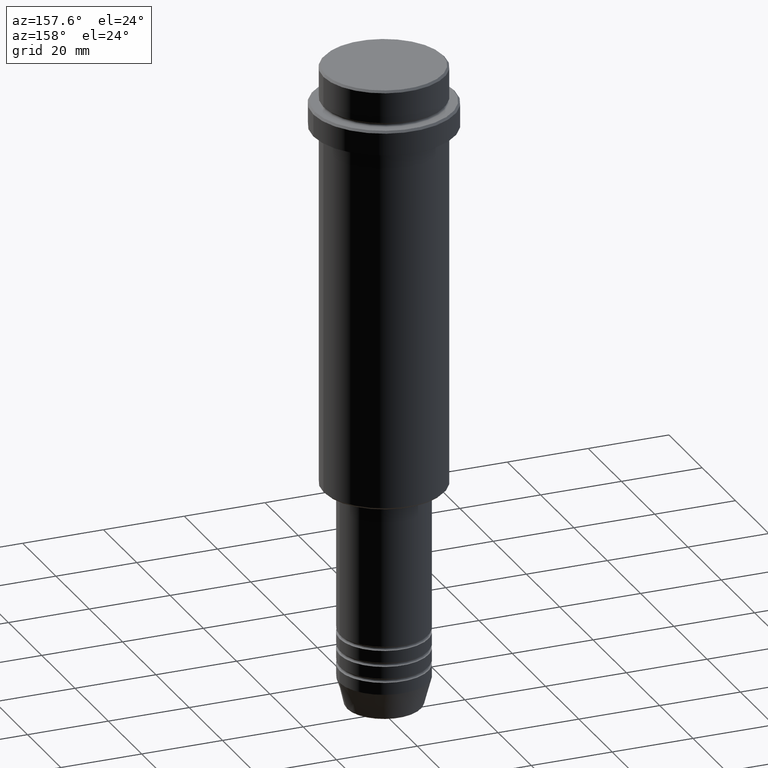
[diagram: clean part render]
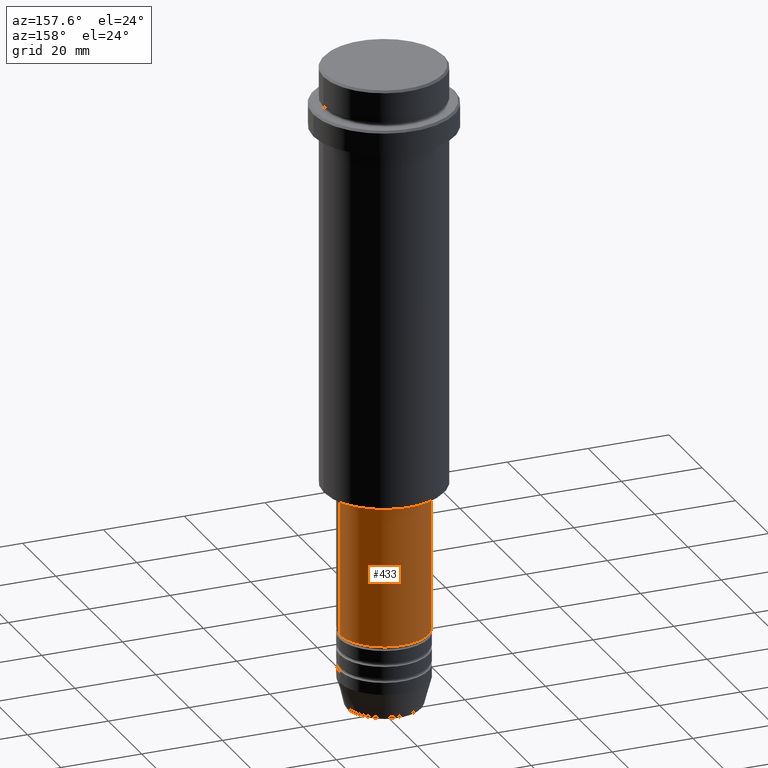
[diagram: same view with one face highlighted and labeled with its STEP entity id]
A machine part, auxiliary view. The second image highlights one B-rep face of the part: STEP entity #433.
In plain terms, the highlighted cylindrical surface (partial cylindrical patch) has radius 11 mm, axis along (-0, -0, 1).
Its self-contained STEP definition (entity closure, byte-faithful):
#9 = VECTOR ( 'NONE', #1145, 1000.000000000000000 ) ;
#138 = DIRECTION ( 'NONE',  ( 1.000000000000000000, 0.000000000000000000, 0.000000000000000000 ) ) ;
#191 = AXIS2_PLACEMENT_3D ( 'NONE', #347, #777, #440 ) ;
#196 = FACE_OUTER_BOUND ( 'NONE', #1319, .T. ) ;
#257 = AXIS2_PLACEMENT_3D ( 'NONE', #996, #1015, #138 ) ;
#268 = ORIENTED_EDGE ( 'NONE', *, *, #1262, .T. ) ;
#283 = LINE ( 'NONE', #616, #9 ) ;
#340 = DIRECTION ( 'NONE',  ( -0.000000000000000000, -0.000000000000000000, 1.000000000000000000 ) ) ;
#347 = CARTESIAN_POINT ( 'NONE',  ( 0.000000000000000000, 0.000000000000000000, -140.9999999999999147 ) ) ;
#378 = CIRCLE ( 'NONE', #257, 10.99999999999999822 ) ;
#433 = ADVANCED_FACE ( 'NONE', ( #196 ), #759, .T. ) ;
#440 = DIRECTION ( 'NONE',  ( 1.000000000000000000, 0.000000000000000000, 0.000000000000000000 ) ) ;
#471 = DIRECTION ( 'NONE',  ( 1.000000000000000000, 0.000000000000000000, 0.000000000000000000 ) ) ;
#519 = VERTEX_POINT ( 'NONE', #1342 ) ;
#531 = AXIS2_PLACEMENT_3D ( 'NONE', #646, #340, #471 ) ;
#535 = EDGE_CURVE ( 'NONE', #519, #942, #858, .T. ) ;
#607 = CARTESIAN_POINT ( 'NONE',  ( -11.00000000000000000, 1.347111479062088405E-15, 0.000000000000000000 ) ) ;
#613 = CARTESIAN_POINT ( 'NONE',  ( 11.00000000000000000, 0.000000000000000000, -140.9999999999999147 ) ) ;
#616 = CARTESIAN_POINT ( 'NONE',  ( 11.00000000000000000, 0.000000000000000000, 0.000000000000000000 ) ) ;
#646 = CARTESIAN_POINT ( 'NONE',  ( 0.000000000000000000, 0.000000000000000000, 0.000000000000000000 ) ) ;
#759 = CYLINDRICAL_SURFACE ( 'NONE', #531, 11.00000000000000000 ) ;
#777 = DIRECTION ( 'NONE',  ( -0.000000000000000000, -0.000000000000000000, 1.000000000000000000 ) ) ;
#817 = EDGE_CURVE ( 'NONE', #923, #942, #378, .T. ) ;
#858 = LINE ( 'NONE', #607, #1274 ) ;
#895 = CARTESIAN_POINT ( 'NONE',  ( 10.99999999999999822, 0.000000000000000000, -106.0000000000000142 ) ) ;
#921 = CARTESIAN_POINT ( 'NONE',  ( -10.99999999999999822, 1.347111479062088207E-15, -106.0000000000000142 ) ) ;
#923 = VERTEX_POINT ( 'NONE', #895 ) ;
#942 = VERTEX_POINT ( 'NONE', #921 ) ;
#947 = ORIENTED_EDGE ( 'NONE', *, *, #817, .F. ) ;
#951 = EDGE_CURVE ( 'NONE', #1363, #923, #283, .T. ) ;
#996 = CARTESIAN_POINT ( 'NONE',  ( 0.000000000000000000, 0.000000000000000000, -106.0000000000000142 ) ) ;
#1015 = DIRECTION ( 'NONE',  ( -0.000000000000000000, -0.000000000000000000, 1.000000000000000000 ) ) ;
#1145 = DIRECTION ( 'NONE',  ( -0.000000000000000000, -0.000000000000000000, 1.000000000000000000 ) ) ;
#1146 = ORIENTED_EDGE ( 'NONE', *, *, #951, .F. ) ;
#1159 = CIRCLE ( 'NONE', #191, 11.00000000000000000 ) ;
#1190 = DIRECTION ( 'NONE',  ( -0.000000000000000000, -0.000000000000000000, 1.000000000000000000 ) ) ;
#1262 = EDGE_CURVE ( 'NONE', #1363, #519, #1159, .T. ) ;
#1274 = VECTOR ( 'NONE', #1190, 1000.000000000000000 ) ;
#1280 = ORIENTED_EDGE ( 'NONE', *, *, #535, .T. ) ;
#1319 = EDGE_LOOP ( 'NONE', ( #268, #1280, #947, #1146 ) ) ;
#1342 = CARTESIAN_POINT ( 'NONE',  ( -11.00000000000000000, 1.347111479062088405E-15, -140.9999999999999147 ) ) ;
#1363 = VERTEX_POINT ( 'NONE', #613 ) ;